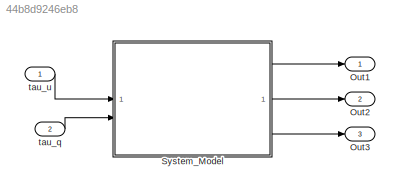
MODEL mdl_44b8d9246eb8
KIND model
CONFIG AbsTol = auto
CONFIG EnableMultiTasking = off
CONFIG FixedStep = auto
CONFIG MaxStep = auto
CONFIG MinStep = auto
CONFIG RelTol = 1e-3
CONFIG SampleTimeConstraint = Unconstrained
CONFIG SolverName = VariableStepAuto
CONFIG StartTime = 0.0
CONFIG StopTime = 10.0
BLOCK [Outport] Out1
BLOCK [Outport] Out2
  Port = 2
BLOCK [Outport] Out3
  Port = 3
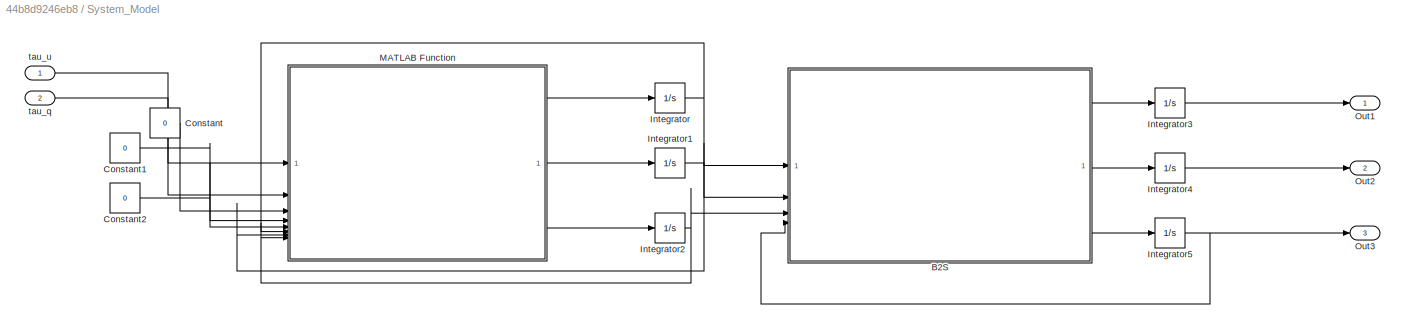
BLOCK [SubSystem] System_Model
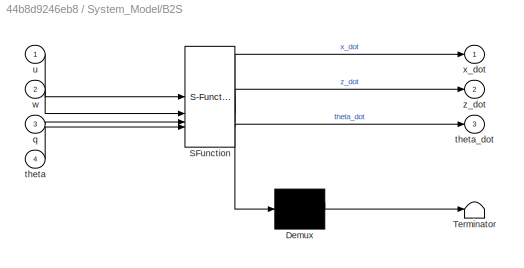
BLOCK [SubSystem] System_Model/B2S
  ErrorFcn = Stateflow.Translate.translate
  PermitHierarchicalResolution = ExplicitOnly
  SFBlockType = MATLAB Function
  TreatAsAtomicUnit = on
BLOCK [Demux] System_Model/B2S/ Demux 
  Outputs = 1
BLOCK [S-Function] System_Model/B2S/ SFunction 
  EnableBusSupport = on
  FunctionName = sf_sfun
  PortCounts = [4 4]
  SFcnIsStateOwnerBlock = off
  SFunctionDeploymentMode = off
  Tag = Stateflow S-Function 1
BLOCK [Terminator] System_Model/B2S/ Terminator 
BLOCK [Inport] System_Model/B2S/q
  Port = 3
BLOCK [Inport] System_Model/B2S/theta
  Port = 4
BLOCK [Outport] System_Model/B2S/theta_dot
  Port = 3
BLOCK [Inport] System_Model/B2S/u
BLOCK [Inport] System_Model/B2S/w
  Port = 2
BLOCK [Outport] System_Model/B2S/x_dot
BLOCK [Outport] System_Model/B2S/z_dot
  Port = 2
BLOCK [Constant] System_Model/Constant
  Value = 0
BLOCK [Constant] System_Model/Constant1
  Value = 0
BLOCK [Constant] System_Model/Constant2
  Value = 0
BLOCK [Integrator] System_Model/Integrator
BLOCK [Integrator] System_Model/Integrator1
BLOCK [Integrator] System_Model/Integrator2
BLOCK [Integrator] System_Model/Integrator3
BLOCK [Integrator] System_Model/Integrator4
BLOCK [Integrator] System_Model/Integrator5
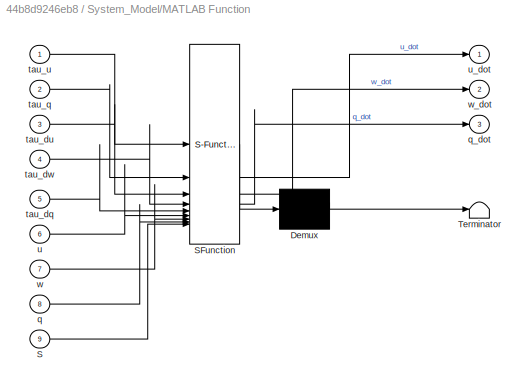
BLOCK [SubSystem] System_Model/MATLAB Function
  ErrorFcn = Stateflow.Translate.translate
  PermitHierarchicalResolution = ExplicitOnly
  SFBlockType = MATLAB Function
  TreatAsAtomicUnit = on
BLOCK [Demux] System_Model/MATLAB Function/ Demux 
  Outputs = 1
BLOCK [S-Function] System_Model/MATLAB Function/ SFunction 
  EnableBusSupport = on
  FunctionName = sf_sfun
  PortCounts = [9 4]
  SFcnIsStateOwnerBlock = off
  SFunctionDeploymentMode = off
  Tag = Stateflow S-Function 2
BLOCK [Terminator] System_Model/MATLAB Function/ Terminator 
BLOCK [Inport] System_Model/MATLAB Function/S
  Port = 9
BLOCK [Inport] System_Model/MATLAB Function/q
  Port = 8
BLOCK [Outport] System_Model/MATLAB Function/q_dot
  Port = 3
BLOCK [Inport] System_Model/MATLAB Function/tau_dq
  Port = 5
BLOCK [Inport] System_Model/MATLAB Function/tau_du
  Port = 3
BLOCK [Inport] System_Model/MATLAB Function/tau_dw
  Port = 4
BLOCK [Inport] System_Model/MATLAB Function/tau_q
  Port = 2
BLOCK [Inport] System_Model/MATLAB Function/tau_u
BLOCK [Inport] System_Model/MATLAB Function/u
  Port = 6
BLOCK [Outport] System_Model/MATLAB Function/u_dot
BLOCK [Inport] System_Model/MATLAB Function/w
  Port = 7
BLOCK [Outport] System_Model/MATLAB Function/w_dot
  Port = 2
BLOCK [Outport] System_Model/Out1
BLOCK [Outport] System_Model/Out2
  Port = 2
BLOCK [Outport] System_Model/Out3
  Port = 3
BLOCK [Inport] System_Model/tau_q
  Port = 2
BLOCK [Inport] System_Model/tau_u
BLOCK [Inport] tau_q
  Port = 2
BLOCK [Inport] tau_u
LINE System_Model/B2S:1 -> System_Model/Integrator3:1
LINE System_Model/B2S:2 -> System_Model/Integrator4:1
LINE System_Model/B2S:3 -> System_Model/Integrator5:1
LINE System_Model/Constant1:1 -> System_Model/MATLAB Function:4
LINE System_Model/Constant2:1 -> System_Model/MATLAB Function:5
LINE System_Model/Constant:1 -> System_Model/MATLAB Function:3
NET System_Model/Integrator1:1 -> System_Model/B2S:2, System_Model/MATLAB Function:7
NET System_Model/Integrator2:1 -> System_Model/B2S:3, System_Model/MATLAB Function:8
LINE System_Model/Integrator3:1 -> System_Model/Out1:1
LINE System_Model/Integrator4:1 -> System_Model/Out2:1
NET System_Model/Integrator5:1 -> System_Model/B2S:4, System_Model/Out3:1
NET System_Model/Integrator:1 -> System_Model/B2S:1, System_Model/MATLAB Function:6
LINE System_Model/MATLAB Function:1 -> System_Model/Integrator:1
LINE System_Model/MATLAB Function:2 -> System_Model/Integrator1:1
LINE System_Model/MATLAB Function:3 -> System_Model/Integrator2:1
LINE System_Model/tau_q:1 -> System_Model/MATLAB Function:2
LINE System_Model/tau_u:1 -> System_Model/MATLAB Function:1
LINE System_Model:1 -> Out1:1
LINE System_Model:2 -> Out2:1
LINE System_Model:3 -> Out3:1
LINE tau_q:1 -> System_Model:2
LINE tau_u:1 -> System_Model:1
note: NET lines group one-source signal fan-out (src -> all destinations, sorted); 1:1 wires keep LINE
CHART System_Model/B2S states=1 transitions=1
  STATE_LABEL 'eML_blk_kernel()'
  STATE_LABEL "SCRIPT:\nfunction [x_dot, z_dot, theta_dot] = BodyToSpatial(u, w, q, theta)\n\nR = [cos(theta) sin(theta) 0; -sin(theta) cos(theta) 0; 0 0 1];   % matrice di rotazione B2S\n\n[x_dot, z_dot, theta_dot]' = R*[u w q]';\n"
CHART System_Model/MATLAB Function states=1 transitions=1
  STATE_LABEL 'eML_blk_kernel()'
  STATE_LABEL 'SCRIPT:\nfunction [u_dot, w_dot, q_dot] = BodyDynamics(tau_u, tau_q, tau_du, tau_dw, tau_dq,u, w, q, S)\n\n[m , lx, lz, I_y, C_lu,C_lw,C_qq,C_qu,C_qw,C_lq] = S;\nB=[m 0 0; 0 m 0; 0 0 I]; %Matrice di massa\nC=[C_lu+C_qu*abs(u) 0 m*w;\n   0 C_lw+C_qw*abs(w) -m*u ;\n   -m*w m*u C_lq+C_qq*abs(q)]; %Matrice dei termini di Coriolis\nTau=[tau_u;0; tau_q];\nTau_d=[tau_du; tau_dw; tau_dq];\nS_Body=[u;w;q];\nS_Body_do...<+100ch>'
CHART  states=0 transitions=0
CHART  states=0 transitions=0
